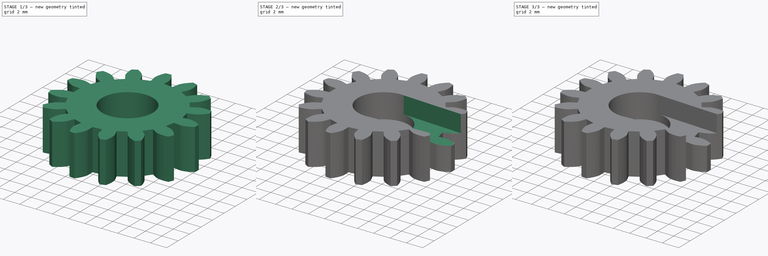
[diagram: build sequence overview — one tinted view per stage of 3, left to right]
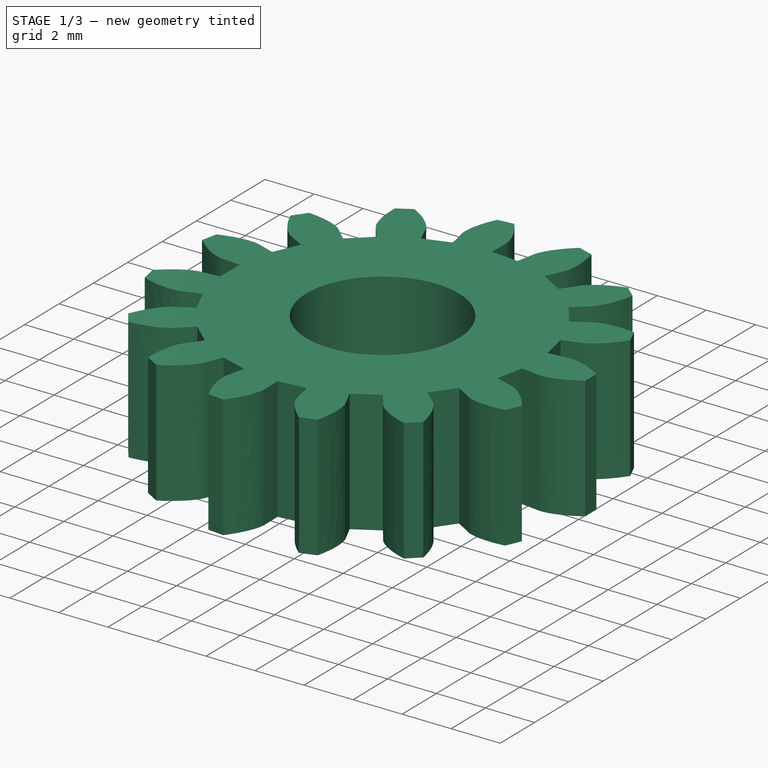
[diagram: stage 1 of 3 — iso view after this stage's code; geometry added in this stage tinted green]
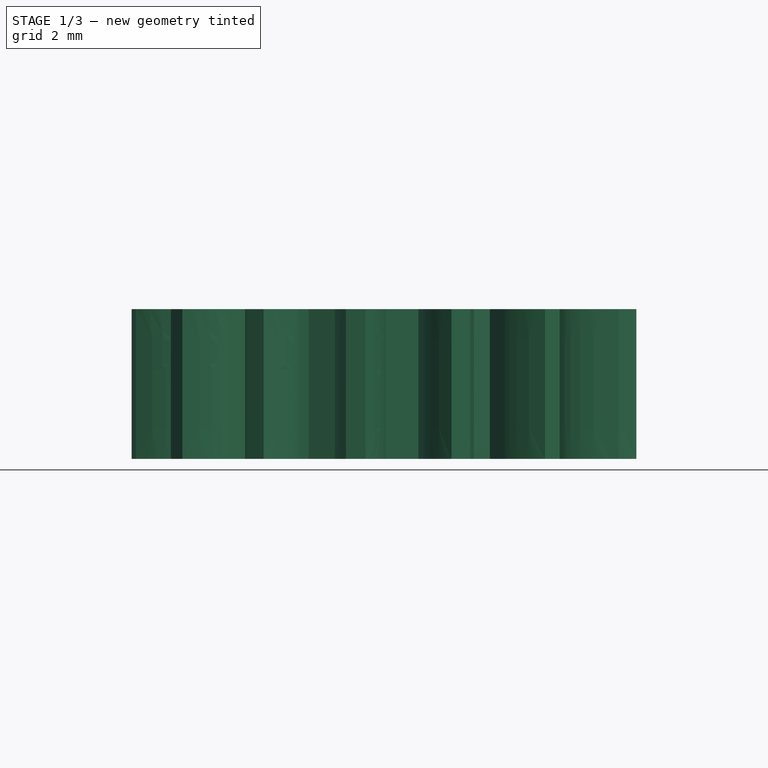
[diagram: stage 1 of 3 — front view after this stage's code; geometry added in this stage tinted green]
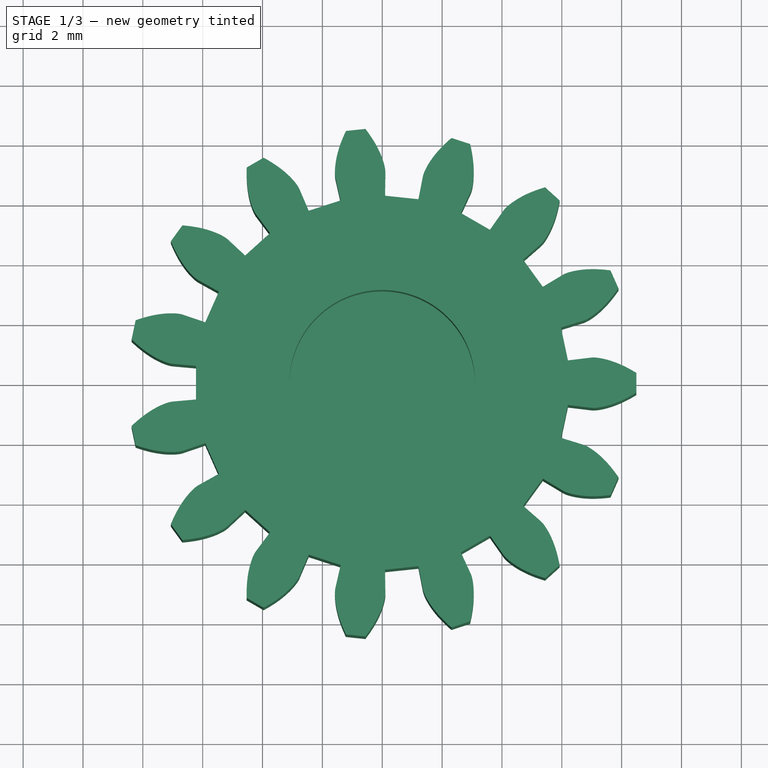
[diagram: stage 1 of 3 — top view after this stage's code; geometry added in this stage tinted green]
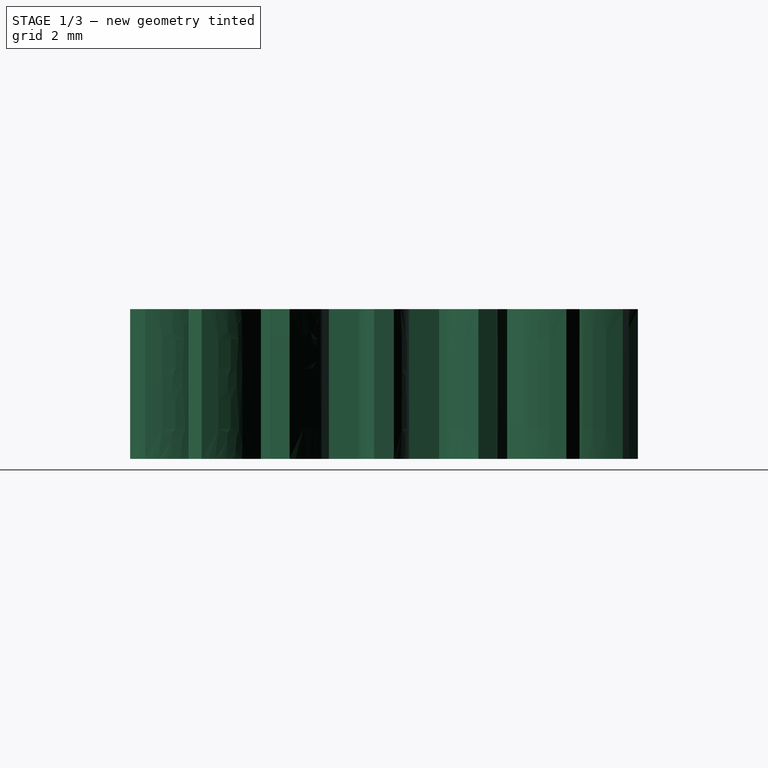
[diagram: stage 1 of 3 — right view after this stage's code; geometry added in this stage tinted green]
FCSTD DOCUMENT  (FreeCAD 0.20R29410 (Git))
Label: roundGear
License: All rights reserved
LicenseURL: http://en.wikipedia.org/wiki/All_rights_reserved
objects: Sketcher::SketchObject×4, PartDesign::Pocket×4, PartDesign::FeaturePython×1, PartDesign::Body×1, App::Part×1
note: 14 computed .brp shape members not serialized (recipe doc carries the construction recipe); baked Part::Feature solids carry a one-line shape summary decoded from their .brp

FEATURE [PartDesign::FeaturePython] InvoluteGear  # WARN: FeaturePython — macro-defined, semantics opaque (R4)
  AttacherType = Attacher::AttachEngine3D
  angular_backlash = 0
  backlash = 0
  beta = 0
  clearance = 0.25
  da = 17
  df = 12.5
  double_helix = false
  dw = 15
  head = 0
  head_fillet = 0
  height = 5
  module = 1
  numpoints = 6
  pressure_angle = 20
  properties_from_tool = false
  reversed_backlash = false
  root_fillet = 0
  shift = 0
  simple = false
  teeth = 15
  transverse_pitch = 3.14159
  traverse_module = 1
  undercut = false
  version = 0.0.4
  expr: angular_backlash = backlash / dw * 360° / pi
FEATURE [Sketcher::SketchObject] Sketch
  FullyConstrained = true
  MapMode = 5
  Placement = pos=(0,0,5) rot=(0,0,1;0rad)
  Support = -> [InvoluteGear]
  sketch-geometry (1):
    g0: Circle CenterX=0 CenterY=0 CenterZ=0 NormalX=0 NormalY=0 NormalZ=1 AngleXU=0 Radius=3.1
  constraints (2):
    c: Coincident(g0,g-1)
    c: Radius(g0) = 3.1
FEATURE [PartDesign::Pocket] Pocket
  BaseFeature = -> InvoluteGear
  Direction = (0,0,-1)
  Length = 3
  Length2 = 5
  Profile = -> Sketch
  ReferenceAxis = -> Sketch [N_Axis]
  Type = 0
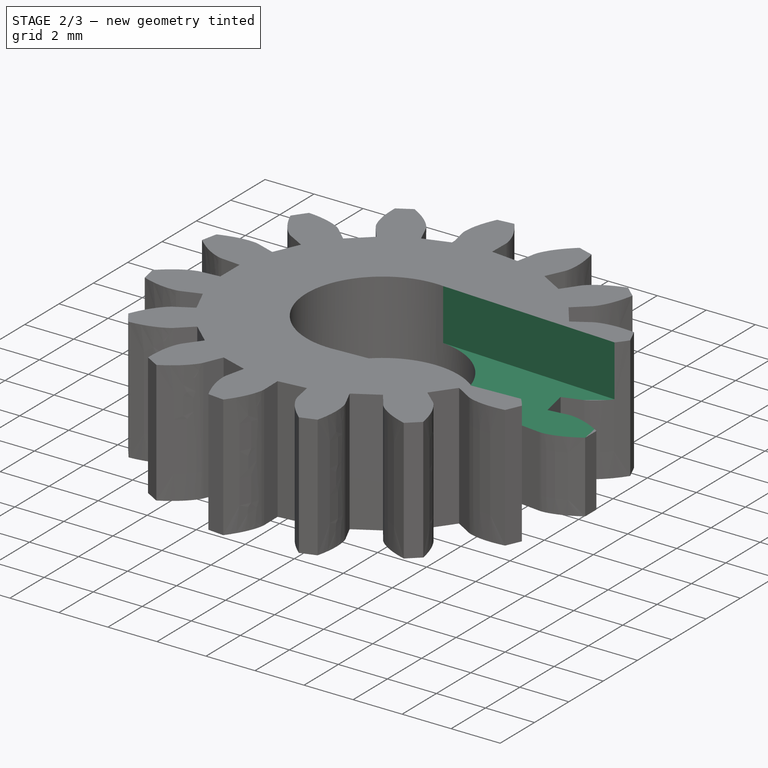
[diagram: stage 2 of 3 — iso view after this stage's code; geometry added in this stage tinted green]
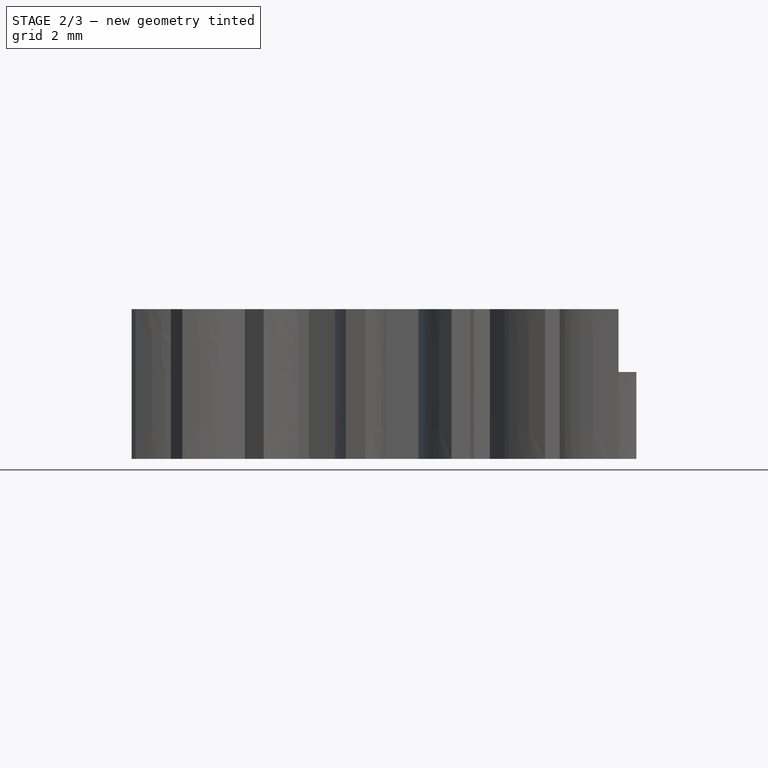
[diagram: stage 2 of 3 — front view after this stage's code; geometry added in this stage tinted green]
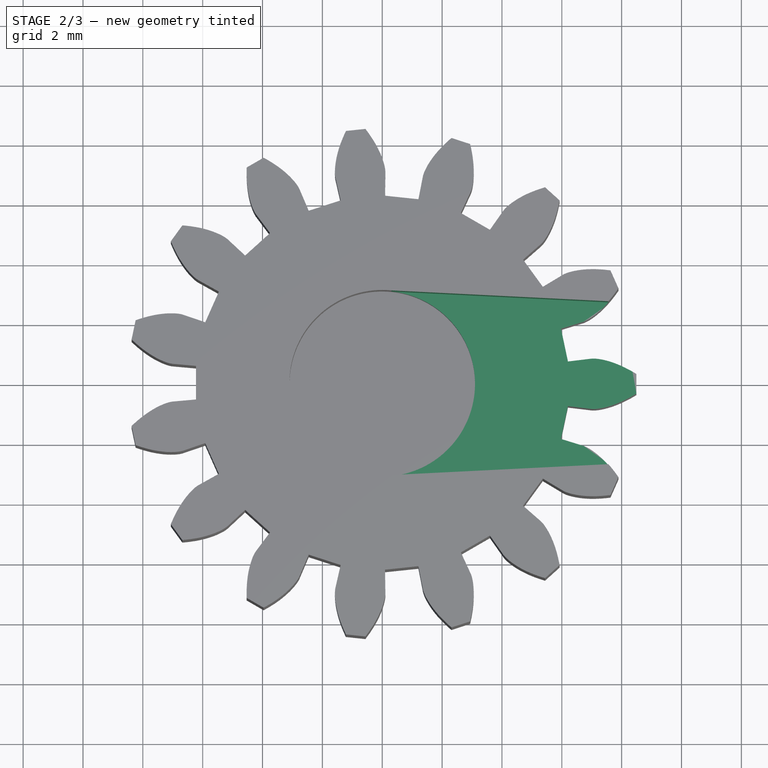
[diagram: stage 2 of 3 — top view after this stage's code; geometry added in this stage tinted green]
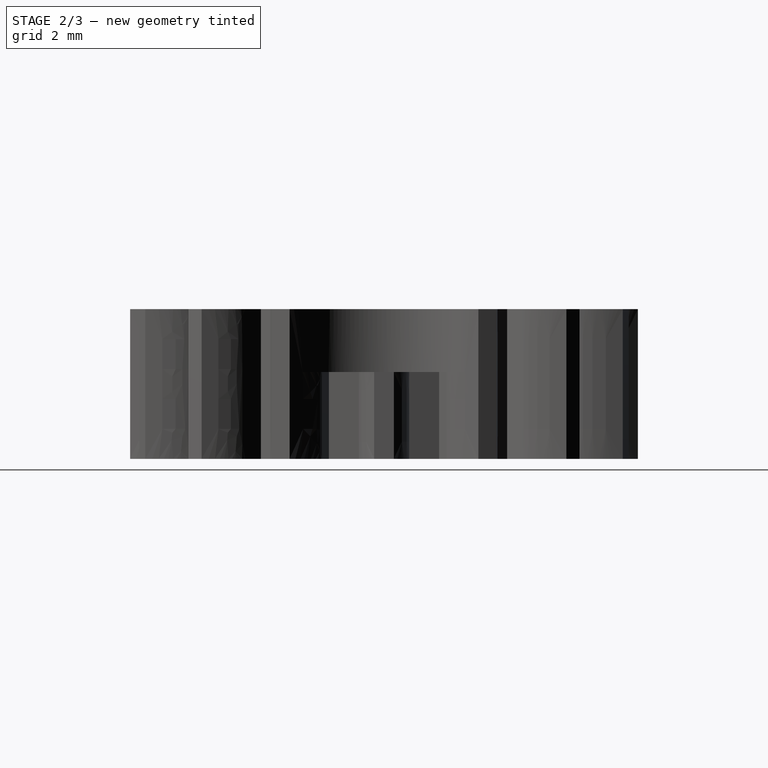
[diagram: stage 2 of 3 — right view after this stage's code; geometry added in this stage tinted green]
FEATURE [Sketcher::SketchObject] Sketch001
  FullyConstrained = true
  MapMode = 5
  Placement = pos=(0,0,5) rot=(0,0,1;0rad)
  Support = -> [Pocket]
  sketch-geometry (4):
    g0: LineSegment StartX=0 StartY=3.1 StartZ=0 EndX=0 EndY=-3.1 EndZ=0
    g1: LineSegment StartX=0 StartY=3.1 StartZ=0 EndX=12 EndY=2.5 EndZ=0
    g2: LineSegment StartX=12 StartY=2.5 StartZ=0 EndX=12 EndY=-2.5 EndZ=0
    g3: LineSegment StartX=0 StartY=-3.1 StartZ=0 EndX=12 EndY=-2.5 EndZ=0
  constraints (12):
    c: Coincident(g1,g0)
    c: Coincident(g2,g1)
    c: Coincident(g3,g0)
    c: Coincident(g3,g2)
    c: DistanceX(g0,g-1) = 0
    c: DistanceX(g0,g-1) = 0
    c: DistanceY(g-1,g0) = 3.1
    c: DistanceY(g0,g-1) = 3.1
    c: DistanceX(g-1,g1) = 12
    c: DistanceX(g-1,g2) = 12
    c: DistanceY(g-1,g1) = 2.5
    c: DistanceY(g2,g-1) = 2.5
FEATURE [PartDesign::Pocket] Pocket001
  BaseFeature = -> Pocket
  Direction = (0,0,-1)
  Length = 2.1
  Length2 = 5
  Profile = -> Sketch001
  ReferenceAxis = -> Sketch001 [N_Axis]
  Type = 0
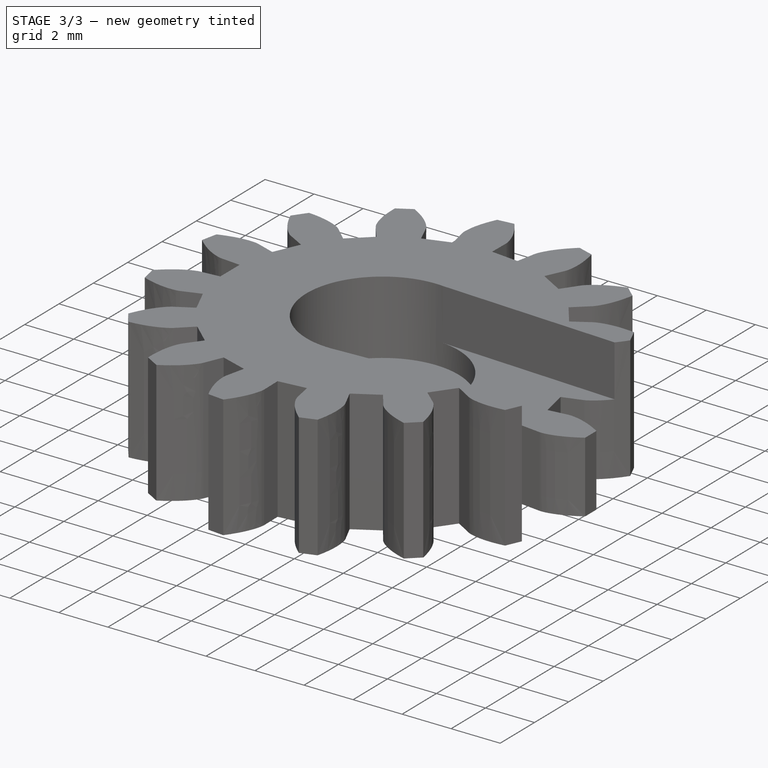
[diagram: stage 3 of 3 — iso view after this stage's code; geometry added in this stage tinted green]
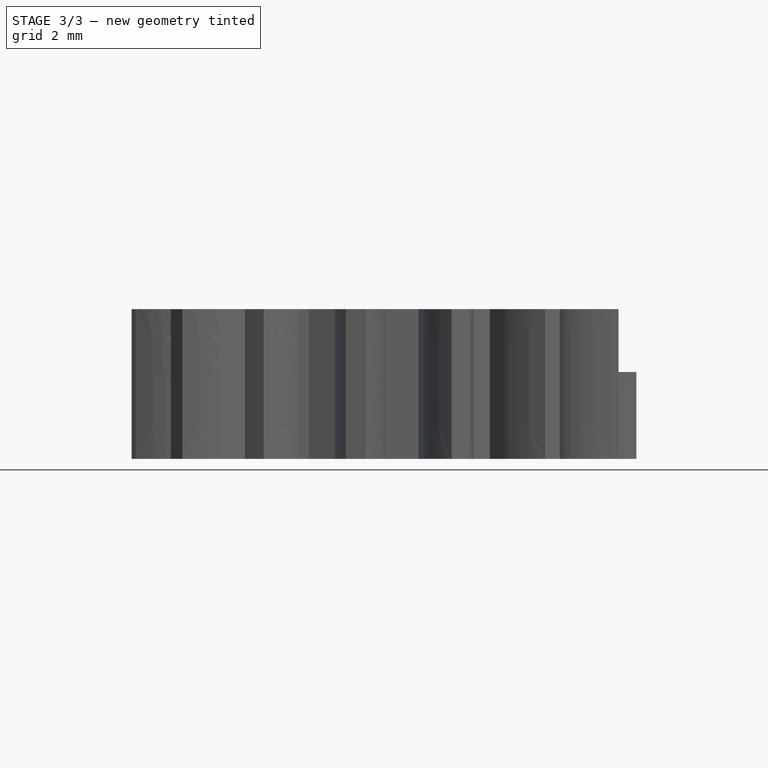
[diagram: stage 3 of 3 — front view after this stage's code; geometry added in this stage tinted green]
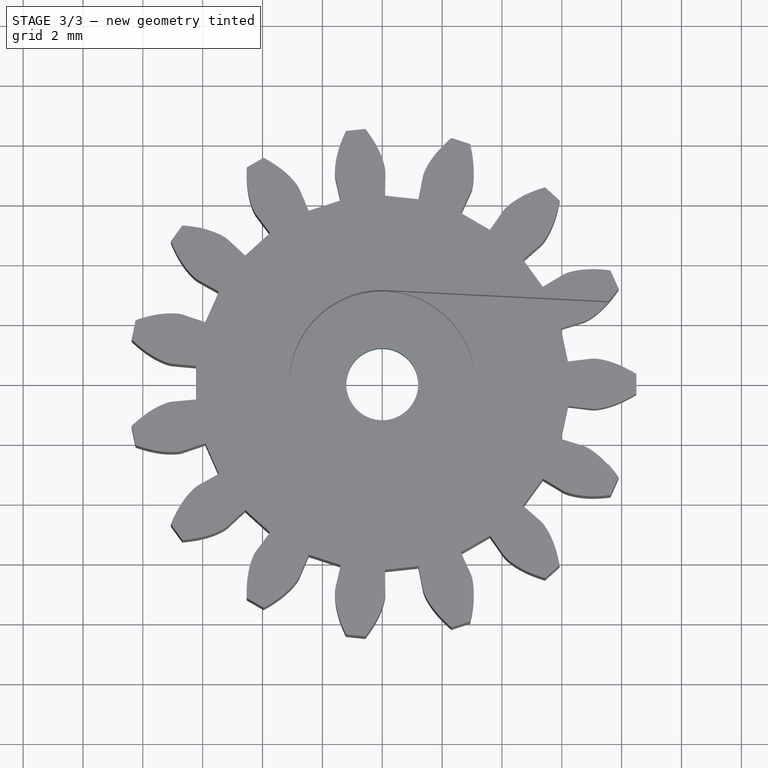
[diagram: stage 3 of 3 — top view after this stage's code; geometry added in this stage tinted green]
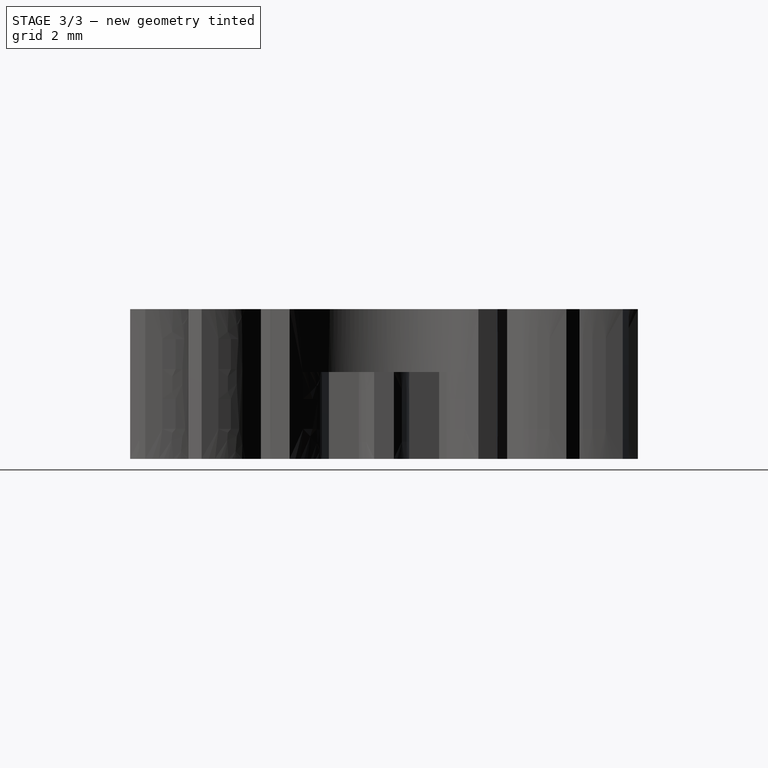
[diagram: stage 3 of 3 — right view after this stage's code; geometry added in this stage tinted green]
FEATURE [Sketcher::SketchObject] Sketch002
  FullyConstrained = true
  MapMode = 5
  Placement = pos=(0,0,2) rot=(0,0,1;0rad)
  Support = -> [Pocket001]
  sketch-geometry (1):
    g0: Circle CenterX=0 CenterY=0 CenterZ=0 NormalX=0 NormalY=0 NormalZ=1 AngleXU=0 Radius=1.2
  constraints (2):
    c: Tangent(g0,g-1) = -1.5708
    c: Radius(g0) = 1.2
FEATURE [PartDesign::Pocket] Pocket002
  BaseFeature = -> Pocket001
  Direction = (0,0,-1)
  Length = 5
  Length2 = 5
  Profile = -> Sketch002
  ReferenceAxis = -> Sketch002 [N_Axis]
  Type = 0
FEATURE [Sketcher::SketchObject] Sketch003
  FullyConstrained = true
  MapMode = 5
  Placement = pos=(0,0,0) rot=(1,0,0;3.14159rad)
  Support = -> [Pocket002]
  sketch-geometry (1):
    g0: Circle CenterX=0 CenterY=0 CenterZ=0 NormalX=0 NormalY=0 NormalZ=1 AngleXU=0 Radius=1.9
  constraints (2):
    c: Coincident(g0,g-1)
    c: Radius(g0) = 1.9
FEATURE [PartDesign::Pocket] Pocket003
  BaseFeature = -> Pocket002
  Direction = (0,0,1)
  Length = 0.5
  Length2 = 5
  Profile = -> Sketch003
  ReferenceAxis = -> Sketch003 [N_Axis]
  Type = 0
FEATURE [PartDesign::Body] Body
  Group = -> [InvoluteGear,Sketch,Pocket,Sketch001,Pocket001,Sketch002,Pocket002,Sketch003,Pocket003]
  Origin = -> Origin001
  Tip = -> Pocket003
FEATURE [App::Part] Part
  Group = -> [Body]
  Origin = -> Origin
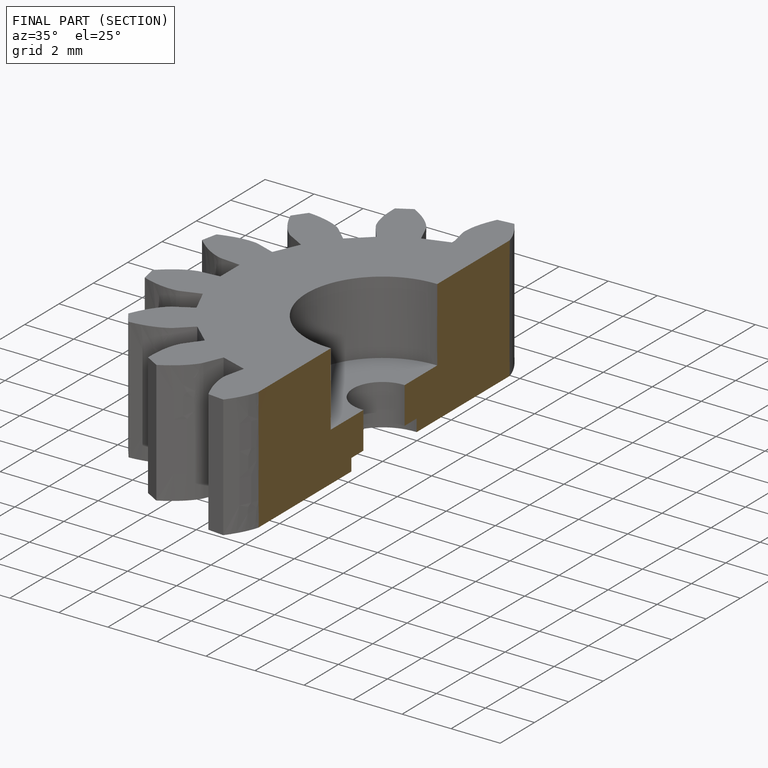
[diagram: finished part — half-section view (interior)]
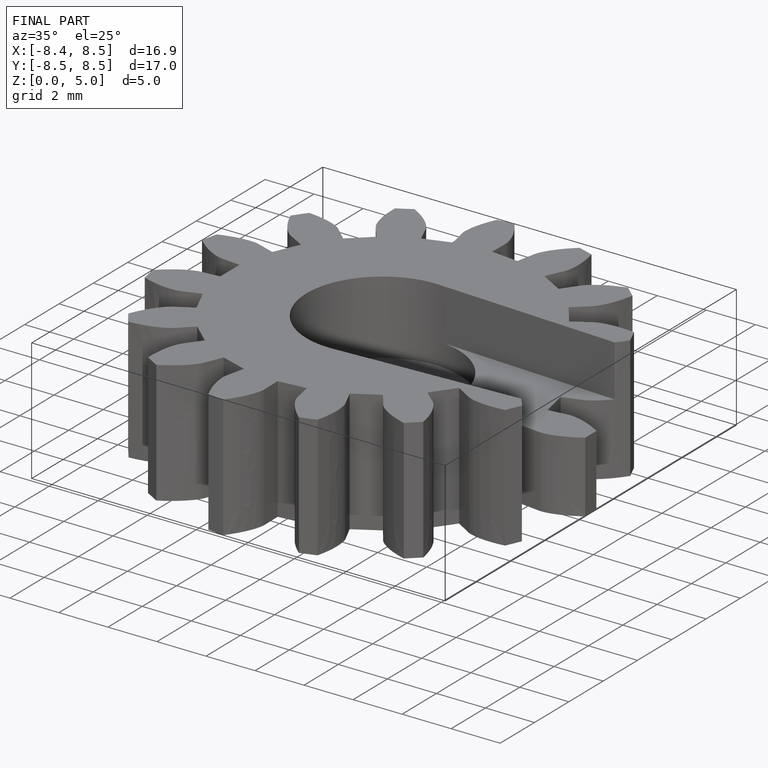
[diagram: finished part — iso view with bounding-box wireframe]
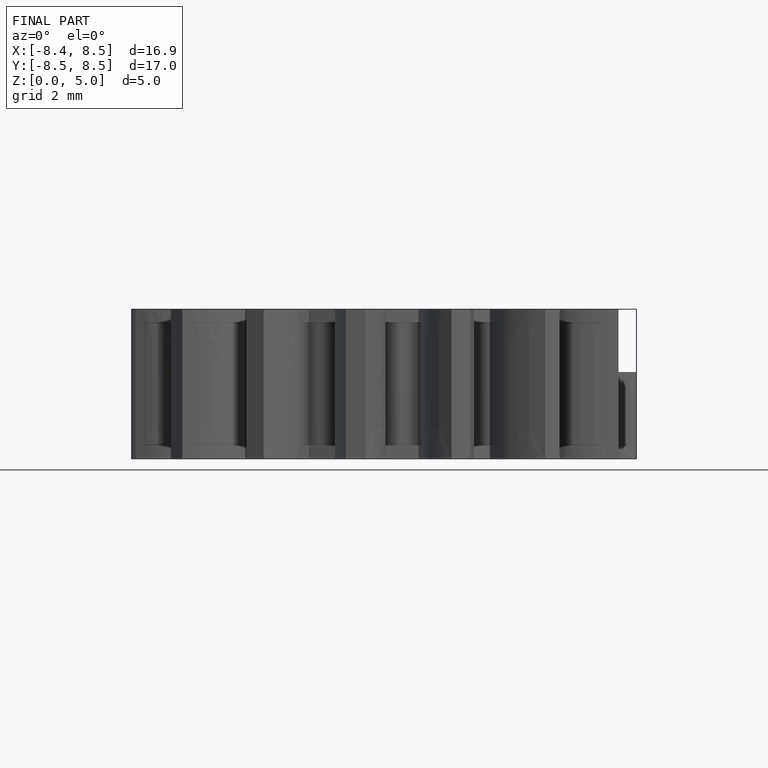
[diagram: finished part — front view with bounding-box wireframe]
